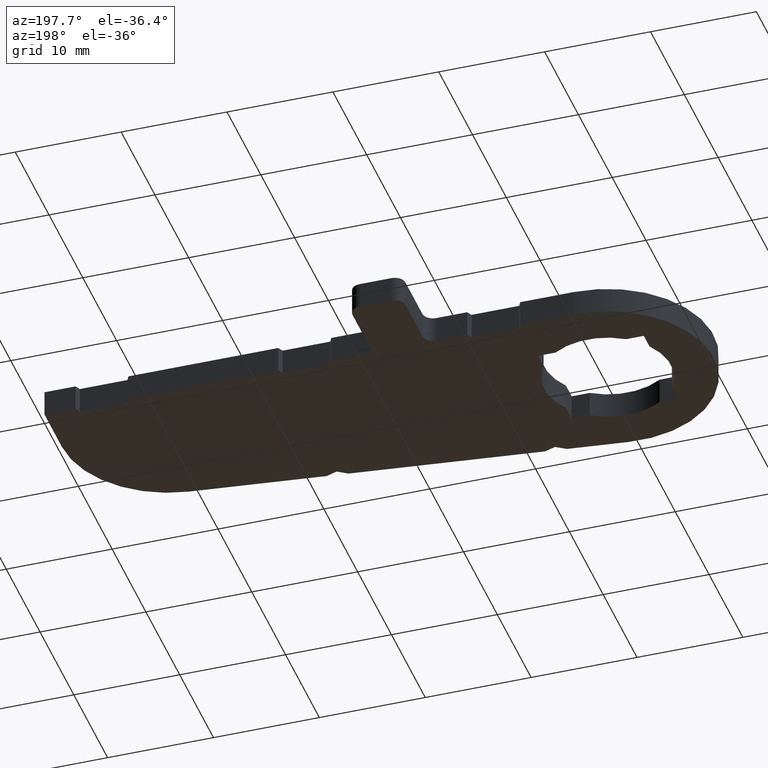
[diagram: clean part render]
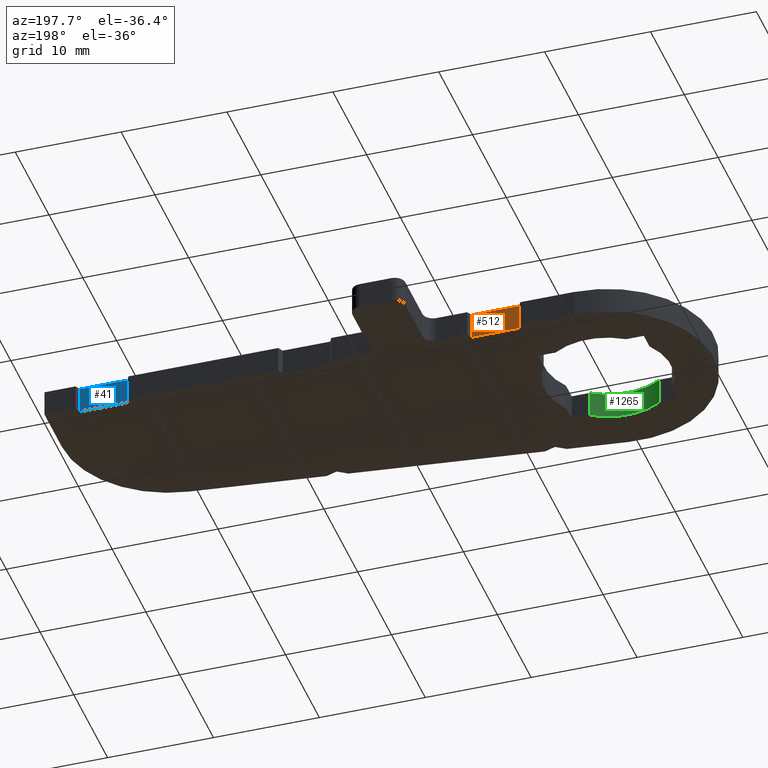
[diagram: same view with three faces highlighted in distinct colors, each labeled with its STEP entity id]
A machine part, auxiliary view with three faces highlighted in distinct colors.
Their STEP definitions:

[orange] entity #512 — the highlighted planar face has unit normal (-0, 1, 0).
#456=CARTESIAN_POINT('',(9.825017492111599,9.499973427885095,-2.500000000000000));
#457=VERTEX_POINT('',#456);
#464=CARTESIAN_POINT('',(9.825017492111599,9.499973427885095,0.0));
#465=VERTEX_POINT('',#464);
#466=CARTESIAN_POINT('',(9.825017492111599,9.499973427885095,-2.500000000000000));
#467=DIRECTION('',(0.0,0.0,1.0));
#468=VECTOR('',#467,2.500000000000000);
#469=LINE('',#466,#468);
#470=EDGE_CURVE('',#457,#465,#469,.T.);
#482=CARTESIAN_POINT('',(9.825017492111599,9.499973427885095,-2.500000000000000));
#483=DIRECTION('',(-0.000000046794867,0.999999999999999,0.0));
#484=DIRECTION('',(-0.999999999999999,-0.000000046794867,0.0));
#485=AXIS2_PLACEMENT_3D('',#482,#483,#484);
#486=PLANE('',#485);
#487=CARTESIAN_POINT('',(5.325017492111599,9.499973217308195,-2.500000000000000));
#488=VERTEX_POINT('',#487);
#489=CARTESIAN_POINT('',(9.825017492111599,9.499973427885095,-2.500000000000000));
#490=DIRECTION('',(-0.999999999999999,-0.000000046794867,0.0));
#491=VECTOR('',#490,4.500000000000004);
#492=LINE('',#489,#491);
#493=EDGE_CURVE('',#457,#488,#492,.T.);
#494=ORIENTED_EDGE('',*,*,#493,.T.);
#495=CARTESIAN_POINT('',(5.325017492111599,9.499973217308195,0.0));
#496=VERTEX_POINT('',#495);
#497=CARTESIAN_POINT('',(5.325017492111599,9.499973217308195,-2.500000000000000));
#498=DIRECTION('',(0.0,0.0,1.0));
#499=VECTOR('',#498,2.500000000000000);
#500=LINE('',#497,#499);
#501=EDGE_CURVE('',#488,#496,#500,.T.);
#502=ORIENTED_EDGE('',*,*,#501,.T.);
#503=CARTESIAN_POINT('',(9.825017492111599,9.499973427885095,0.0));
#504=DIRECTION('',(-0.999999999999999,-0.000000046794867,0.0));
#505=VECTOR('',#504,4.500000000000004);
#506=LINE('',#503,#505);
#507=EDGE_CURVE('',#465,#496,#506,.T.);
#508=ORIENTED_EDGE('',*,*,#507,.F.);
#509=ORIENTED_EDGE('',*,*,#470,.F.);
#510=EDGE_LOOP('',(#494,#502,#508,#509));
#511=FACE_OUTER_BOUND('',#510,.T.);
#512=ADVANCED_FACE('',(#511),#486,.T.);

[blue] entity #41 — the highlighted planar face has unit normal (-0, 1, 0).
#2=CARTESIAN_POINT('',(46.825017492111371,9.499975159296298,-2.500000000000000));
#3=DIRECTION('',(-0.000000046794917,0.999999999999999,0.0));
#4=DIRECTION('',(-0.999999999999999,-0.000000046794917,0.0));
#5=AXIS2_PLACEMENT_3D('',#2,#3,#4);
#6=PLANE('',#5);
#7=CARTESIAN_POINT('',(46.825017492111371,9.499975159296298,-2.500000000000000));
#8=VERTEX_POINT('',#7);
#9=CARTESIAN_POINT('',(42.325017492111371,9.499974948719171,-2.500000000000000));
#10=VERTEX_POINT('',#9);
#11=CARTESIAN_POINT('',(46.825017492111371,9.499975159296298,-2.500000000000000));
#12=DIRECTION('',(-0.999999999999999,-0.000000046794917,0.0));
#13=VECTOR('',#12,4.500000000000004);
#14=LINE('',#11,#13);
#15=EDGE_CURVE('',#8,#10,#14,.T.);
#16=ORIENTED_EDGE('',*,*,#15,.T.);
#17=CARTESIAN_POINT('',(42.325017492111371,9.499974948719171,0.0));
#18=VERTEX_POINT('',#17);
#19=CARTESIAN_POINT('',(42.325017492111371,9.499974948719171,-2.500000000000000));
#20=DIRECTION('',(0.0,0.0,1.0));
#21=VECTOR('',#20,2.500000000000000);
#22=LINE('',#19,#21);
#23=EDGE_CURVE('',#10,#18,#22,.T.);
#24=ORIENTED_EDGE('',*,*,#23,.T.);
#25=CARTESIAN_POINT('',(46.825017492111371,9.499975159296298,0.0));
#26=VERTEX_POINT('',#25);
#27=CARTESIAN_POINT('',(46.825017492111371,9.499975159296298,0.0));
#28=DIRECTION('',(-0.999999999999999,-0.000000046794917,0.0));
#29=VECTOR('',#28,4.500000000000004);
#30=LINE('',#27,#29);
#31=EDGE_CURVE('',#26,#18,#30,.T.);
#32=ORIENTED_EDGE('',*,*,#31,.F.);
#33=CARTESIAN_POINT('',(46.825017492111371,9.499975159296298,-2.500000000000000));
#34=DIRECTION('',(0.0,0.0,1.0));
#35=VECTOR('',#34,2.500000000000000);
#36=LINE('',#33,#35);
#37=EDGE_CURVE('',#8,#26,#36,.T.);
#38=ORIENTED_EDGE('',*,*,#37,.F.);
#39=EDGE_LOOP('',(#16,#24,#32,#38));
#40=FACE_OUTER_BOUND('',#39,.T.);
#41=ADVANCED_FACE('',(#40),#6,.T.);

[green] entity #1265 — the highlighted cylindrical surface (partial cylindrical patch) has radius 6 mm, axis along (0, 0, -1).
#1014=CARTESIAN_POINT('',(-3.301500014300430,-5.009999766025373,-2.500000000000000));
#1015=VERTEX_POINT('',#1014);
#1022=CARTESIAN_POINT('',(3.301500014300423,-5.009999766025373,-2.500000000000000));
#1023=VERTEX_POINT('',#1022);
#1024=CARTESIAN_POINT('',(0.0,0.0,-2.500000000000000));
#1025=DIRECTION('',(0.0,0.0,-1.0));
#1026=DIRECTION('',(1.0,0.0,0.0));
#1027=AXIS2_PLACEMENT_3D('',#1024,#1025,#1026);
#1028=CIRCLE('',#1027,5.999999999999999);
#1029=EDGE_CURVE('',#1023,#1015,#1028,.T.);
#1138=CARTESIAN_POINT('',(3.301500014300423,-5.009999766025373,0.0));
#1139=VERTEX_POINT('',#1138);
#1146=CARTESIAN_POINT('',(-3.301500014300430,-5.009999766025373,0.0));
#1147=VERTEX_POINT('',#1146);
#1148=CARTESIAN_POINT('',(0.0,0.0,0.0));
#1149=DIRECTION('',(0.0,0.0,-1.0));
#1150=DIRECTION('',(1.0,0.0,0.0));
#1151=AXIS2_PLACEMENT_3D('',#1148,#1149,#1150);
#1152=CIRCLE('',#1151,5.999999999999999);
#1153=EDGE_CURVE('',#1139,#1147,#1152,.T.);
#1244=CARTESIAN_POINT('',(0.0,0.0,-2.500000000000000));
#1245=DIRECTION('',(0.0,0.0,-1.0));
#1246=DIRECTION('',(1.0,0.0,0.0));
#1247=AXIS2_PLACEMENT_3D('',#1244,#1245,#1246);
#1248=CYLINDRICAL_SURFACE('',#1247,5.999999999999999);
#1249=ORIENTED_EDGE('',*,*,#1029,.T.);
#1250=CARTESIAN_POINT('',(-3.301500014300430,-5.009999766025373,-2.500000000000000));
#1251=DIRECTION('',(0.0,0.0,1.0));
#1252=VECTOR('',#1251,2.500000000000000);
#1253=LINE('',#1250,#1252);
#1254=EDGE_CURVE('',#1015,#1147,#1253,.T.);
#1255=ORIENTED_EDGE('',*,*,#1254,.T.);
#1256=ORIENTED_EDGE('',*,*,#1153,.F.);
#1257=CARTESIAN_POINT('',(3.301500014300423,-5.009999766025373,0.0));
#1258=DIRECTION('',(0.0,0.0,-1.0));
#1259=VECTOR('',#1258,2.500000000000000);
#1260=LINE('',#1257,#1259);
#1261=EDGE_CURVE('',#1139,#1023,#1260,.T.);
#1262=ORIENTED_EDGE('',*,*,#1261,.T.);
#1263=EDGE_LOOP('',(#1249,#1255,#1256,#1262));
#1264=FACE_OUTER_BOUND('',#1263,.T.);
#1265=ADVANCED_FACE('',(#1264),#1248,.F.);